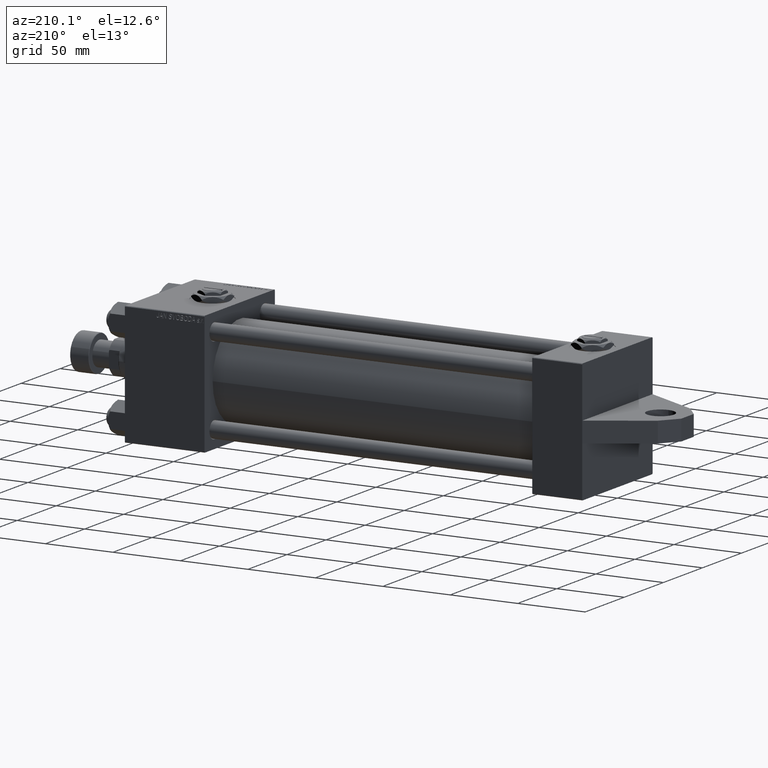
[diagram: clean part render]
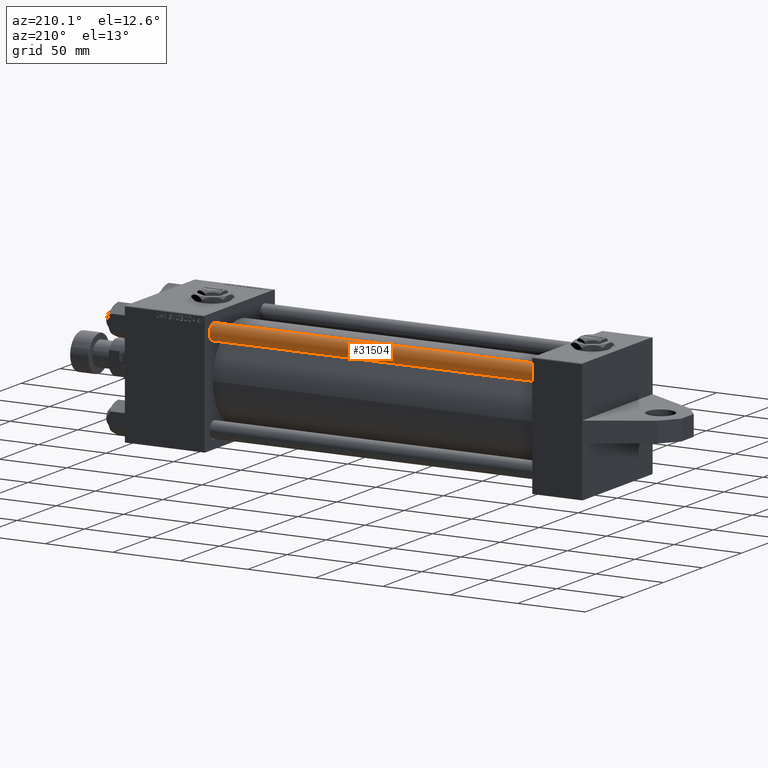
[diagram: same view with one face highlighted and labeled with its STEP entity id]
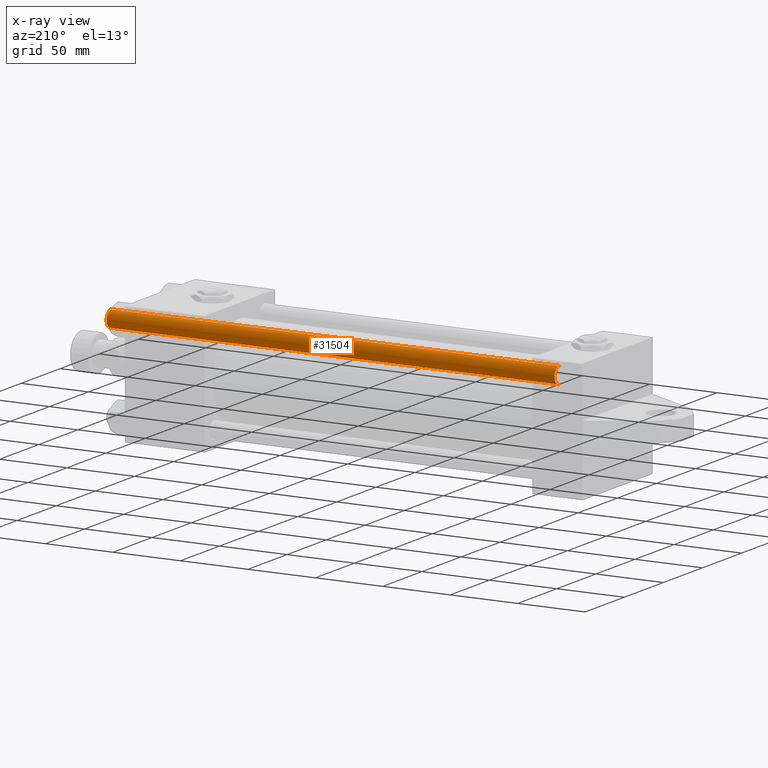
[diagram: x-ray of the same camera — body ghosted, the highlighted face saturated]
A machine part, auxiliary view. The second image highlights one B-rep face of the part: STEP entity #31504.
The next image is the same camera in x-ray: the body ghosted, the highlighted face saturated — about 0% of this face is hidden behind the body in this view.
In plain terms, the highlighted cylindrical surface (edge-blend (fillet) strip) has radius 6 mm, axis along (-1, 0, -0).
Its self-contained STEP definition (entity closure, byte-faithful):
#531 = CARTESIAN_POINT ( 'NONE',  ( 6.000000000000000888, 7.347880794884120722E-16, 332.5000000000001137 ) ) ;
#1427 = AXIS2_PLACEMENT_3D ( 'NONE', #28909, #32588, #2605 ) ;
#2569 = DIRECTION ( 'NONE',  ( 0.000000000000000000, 0.000000000000000000, -1.000000000000000000 ) ) ;
#2605 = DIRECTION ( 'NONE',  ( 1.000000000000000000, 0.000000000000000000, 0.000000000000000000 ) ) ;
#4005 = CARTESIAN_POINT ( 'NONE',  ( -6.000000000000000888, 0.000000000000000000, 333.0000000000000000 ) ) ;
#4490 = ORIENTED_EDGE ( 'NONE', *, *, #35260, .T. ) ;
#7583 = CARTESIAN_POINT ( 'NONE',  ( 6.000000000000000888, 7.347880794884120722E-16, 0.5000000000000004441 ) ) ;
#7938 = LINE ( 'NONE', #4005, #24365 ) ;
#10078 = CARTESIAN_POINT ( 'NONE',  ( -6.000000000000000888, 0.000000000000000000, 332.5000000000001137 ) ) ;
#10308 = CYLINDRICAL_SURFACE ( 'NONE', #24057, 6.000000000000000888 ) ;
#14088 = CARTESIAN_POINT ( 'NONE',  ( 0.000000000000000000, 0.000000000000000000, 332.5000000000001137 ) ) ;
#14932 = AXIS2_PLACEMENT_3D ( 'NONE', #14088, #2569, #44091 ) ;
#17215 = VERTEX_POINT ( 'NONE', #28767 ) ;
#18665 = VECTOR ( 'NONE', #44152, 1000.000000000000000 ) ;
#18946 = VERTEX_POINT ( 'NONE', #7583 ) ;
#19208 = EDGE_CURVE ( 'NONE', #18946, #17215, #36739, .T. ) ;
#22729 = CARTESIAN_POINT ( 'NONE',  ( 6.000000000000000888, 7.347880794884120722E-16, 333.0000000000000000 ) ) ;
#23964 = ORIENTED_EDGE ( 'NONE', *, *, #41279, .T. ) ;
#24057 = AXIS2_PLACEMENT_3D ( 'NONE', #36840, #47430, #40294 ) ;
#24365 = VECTOR ( 'NONE', #38670, 1000.000000000000000 ) ;
#25533 = VERTEX_POINT ( 'NONE', #10078 ) ;
#25709 = LINE ( 'NONE', #22729, #18665 ) ;
#28767 = CARTESIAN_POINT ( 'NONE',  ( -6.000000000000000888, 0.000000000000000000, 0.5000000000000004441 ) ) ;
#28909 = CARTESIAN_POINT ( 'NONE',  ( 0.000000000000000000, 0.000000000000000000, 0.5000000000000004441 ) ) ;
#29057 = ORIENTED_EDGE ( 'NONE', *, *, #44085, .F. ) ;
#29153 = VERTEX_POINT ( 'NONE', #531 ) ;
#29396 = EDGE_LOOP ( 'NONE', ( #23964, #4490, #34233, #29057 ) ) ;
#29857 = CIRCLE ( 'NONE', #14932, 6.000000000000000888 ) ;
#31504 = ADVANCED_FACE ( 'NONE', ( #32916 ), #10308, .T. ) ;
#32588 = DIRECTION ( 'NONE',  ( -0.000000000000000000, -0.000000000000000000, 1.000000000000000000 ) ) ;
#32916 = FACE_OUTER_BOUND ( 'NONE', #29396, .T. ) ;
#34233 = ORIENTED_EDGE ( 'NONE', *, *, #19208, .T. ) ;
#35260 = EDGE_CURVE ( 'NONE', #29153, #18946, #25709, .T. ) ;
#36739 = CIRCLE ( 'NONE', #1427, 6.000000000000000888 ) ;
#36840 = CARTESIAN_POINT ( 'NONE',  ( 0.000000000000000000, 0.000000000000000000, 333.0000000000000000 ) ) ;
#38670 = DIRECTION ( 'NONE',  ( -0.000000000000000000, -0.000000000000000000, -1.000000000000000000 ) ) ;
#40294 = DIRECTION ( 'NONE',  ( -1.000000000000000000, 0.000000000000000000, 0.000000000000000000 ) ) ;
#41279 = EDGE_CURVE ( 'NONE', #25533, #29153, #29857, .T. ) ;
#44085 = EDGE_CURVE ( 'NONE', #25533, #17215, #7938, .T. ) ;
#44091 = DIRECTION ( 'NONE',  ( 1.000000000000000000, 0.000000000000000000, 0.000000000000000000 ) ) ;
#44152 = DIRECTION ( 'NONE',  ( -0.000000000000000000, -0.000000000000000000, -1.000000000000000000 ) ) ;
#47430 = DIRECTION ( 'NONE',  ( -0.000000000000000000, -0.000000000000000000, -1.000000000000000000 ) ) ;